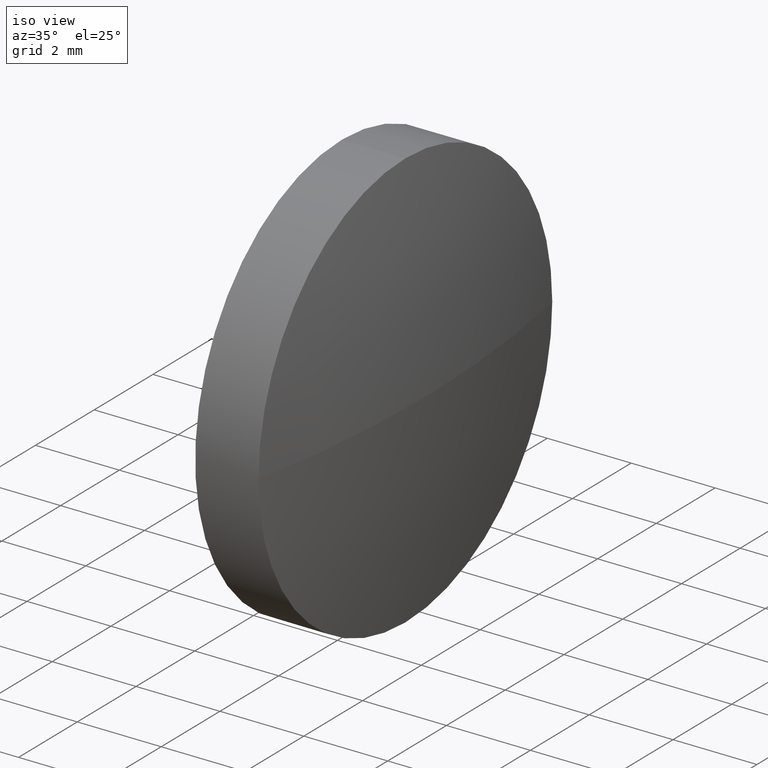
[diagram: clean part render]
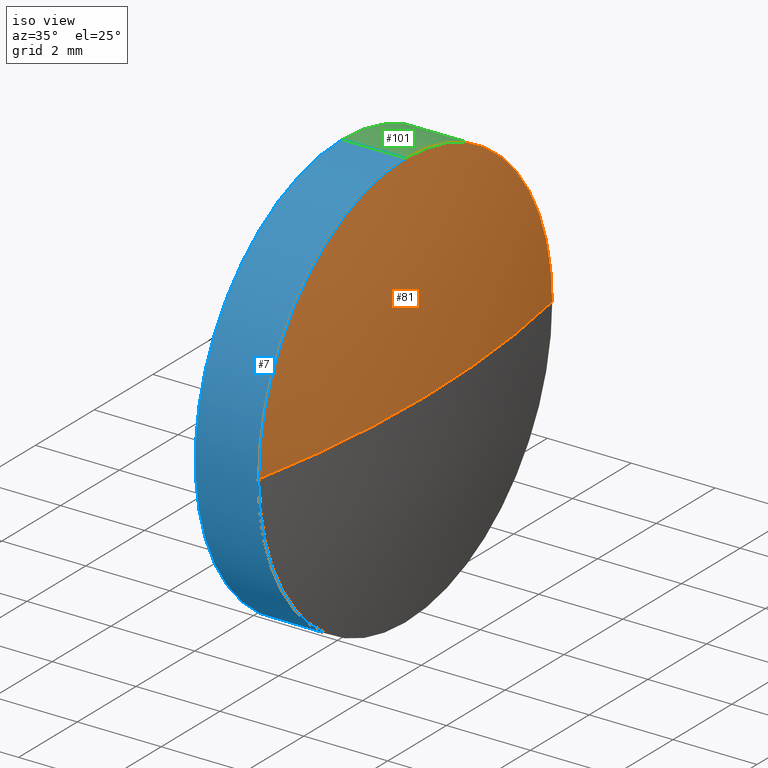
[diagram: same view with three faces highlighted in distinct colors, each labeled with its STEP entity id]
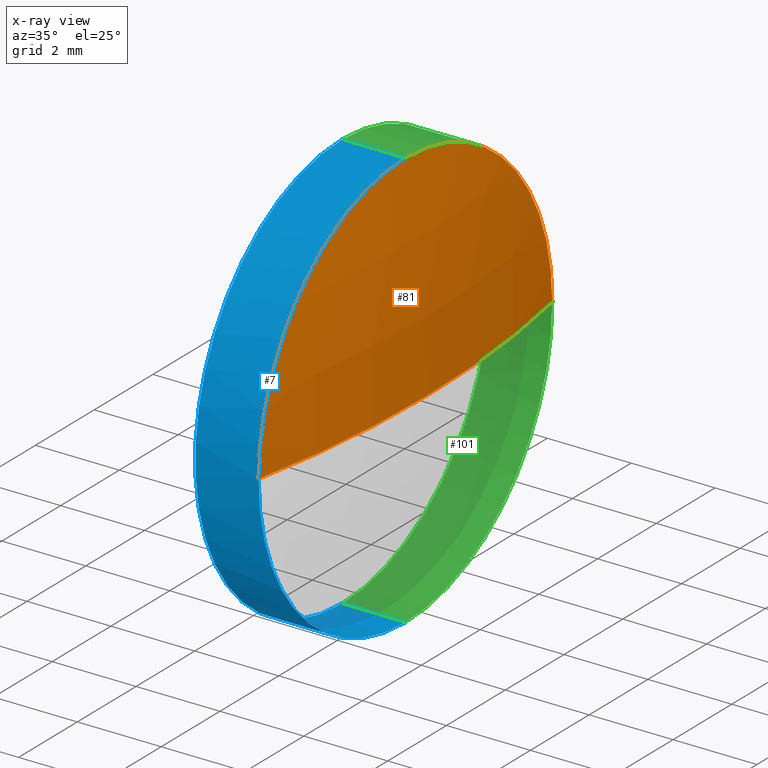
[diagram: x-ray of the same camera — body ghosted, the three highlighted faces saturated]
A machine part, iso view with three faces highlighted in distinct colors.
The next image is the same camera in x-ray (body ghosted, the three faces saturated) — at least one of them is partly hidden behind the body in this view.
Their STEP definitions:

[orange] entity #81 — the highlighted spherical surface has radius 25.7552 mm.
#1 = ORIENTED_EDGE ( 'NONE', *, *, #38, .F. ) ;
#2 = VERTEX_POINT ( 'NONE', #40 ) ;
#20 = DIRECTION ( 'NONE',  ( 0.0000000000000000000, 0.0000000000000000000, 1.000000000000000000 ) ) ;
#21 = EDGE_CURVE ( 'NONE', #2, #185, #68, .T. ) ;
#25 = CARTESIAN_POINT ( 'NONE',  ( 464.8755895717470100, 129.0640257703732300, 5.000000000000004400 ) ) ;
#31 = DIRECTION ( 'NONE',  ( 0.0000000000000000000, 1.224646799147353200E-016, -1.000000000000000000 ) ) ;
#32 = SPHERICAL_SURFACE ( 'NONE', #153, 25.75520408163263400 ) ;
#37 = EDGE_LOOP ( 'NONE', ( #123, #46, #1, #99 ) ) ;
#38 = EDGE_CURVE ( 'NONE', #162, #185, #119, .T. ) ;
#40 = CARTESIAN_POINT ( 'NONE',  ( 465.3655895717470200, 129.0640257703731500, 0.0000000000000000000 ) ) ;
#41 = DIRECTION ( 'NONE',  ( 0.0000000000000000000, 0.0000000000000000000, 1.000000000000000000 ) ) ;
#44 = DIRECTION ( 'NONE',  ( -0.0000000000000000000, 0.0000000000000000000, -1.000000000000000000 ) ) ;
#46 = ORIENTED_EDGE ( 'NONE', *, *, #21, .T. ) ;
#59 = EDGE_CURVE ( 'NONE', #2, #145, #80, .T. ) ;
#68 = CIRCLE ( 'NONE', #97, 25.75520408163262000 ) ;
#70 = EDGE_CURVE ( 'NONE', #145, #162, #92, .T. ) ;
#77 = AXIS2_PLACEMENT_3D ( 'NONE', #138, #171, #41 ) ;
#80 = CIRCLE ( 'NONE', #146, 25.75520408163264800 ) ;
#81 = ADVANCED_FACE ( 'NONE', ( #134 ), #32, .T. ) ;
#88 = CARTESIAN_POINT ( 'NONE',  ( 439.6103854901143700, 129.0640257703731500, 0.0000000000000000000 ) ) ;
#91 = CARTESIAN_POINT ( 'NONE',  ( 439.6103854901143700, 129.0640257703731500, 0.0000000000000000000 ) ) ;
#92 = CIRCLE ( 'NONE', #107, 5.000000000000004400 ) ;
#93 = CARTESIAN_POINT ( 'NONE',  ( 464.8755895717470100, 129.0640257703732300, 0.0000000000000000000 ) ) ;
#97 = AXIS2_PLACEMENT_3D ( 'NONE', #88, #121, #168 ) ;
#99 = ORIENTED_EDGE ( 'NONE', *, *, #70, .F. ) ;
#107 = AXIS2_PLACEMENT_3D ( 'NONE', #93, #128, #20 ) ;
#119 = CIRCLE ( 'NONE', #77, 5.000000000000004400 ) ;
#121 = DIRECTION ( 'NONE',  ( -0.0000000000000000000, 0.0000000000000000000, 1.000000000000000000 ) ) ;
#123 = ORIENTED_EDGE ( 'NONE', *, *, #59, .F. ) ;
#127 = CARTESIAN_POINT ( 'NONE',  ( 439.6103854901143700, 129.0640257703731500, 0.0000000000000000000 ) ) ;
#128 = DIRECTION ( 'NONE',  ( -1.000000000000000000, -0.0000000000000000000, -0.0000000000000000000 ) ) ;
#134 = FACE_OUTER_BOUND ( 'NONE', #37, .T. ) ;
#138 = CARTESIAN_POINT ( 'NONE',  ( 464.8755895717470100, 129.0640257703732300, 0.0000000000000000000 ) ) ;
#141 = DIRECTION ( 'NONE',  ( 0.0000000000000000000, 1.000000000000000000, 1.224646799147352700E-016 ) ) ;
#143 = DIRECTION ( 'NONE',  ( 0.0000000000000000000, 1.000000000000000000, 0.0000000000000000000 ) ) ;
#145 = VERTEX_POINT ( 'NONE', #181 ) ;
#146 = AXIS2_PLACEMENT_3D ( 'NONE', #91, #31, #141 ) ;
#153 = AXIS2_PLACEMENT_3D ( 'NONE', #127, #44, #143 ) ;
#162 = VERTEX_POINT ( 'NONE', #25 ) ;
#168 = DIRECTION ( 'NONE',  ( 1.000000000000000000, 0.0000000000000000000, 0.0000000000000000000 ) ) ;
#171 = DIRECTION ( 'NONE',  ( -1.000000000000000000, -0.0000000000000000000, -0.0000000000000000000 ) ) ;
#180 = CARTESIAN_POINT ( 'NONE',  ( 464.8755895717470100, 134.0640257703732100, 0.0000000000000000000 ) ) ;
#181 = CARTESIAN_POINT ( 'NONE',  ( 464.8755895717470100, 124.0640257703731800, -6.123233995736738700E-016 ) ) ;
#185 = VERTEX_POINT ( 'NONE', #180 ) ;

[blue] entity #7 — the highlighted cylindrical surface (partial cylindrical patch) has radius 5 mm, axis along (-1, -0, -0).
#7 = ADVANCED_FACE ( 'NONE', ( #164 ), #136, .T. ) ;
#13 = DIRECTION ( 'NONE',  ( -1.000000000000000000, -0.0000000000000000000, -0.0000000000000000000 ) ) ;
#19 = DIRECTION ( 'NONE',  ( -1.000000000000000000, -0.0000000000000000000, -0.0000000000000000000 ) ) ;
#20 = DIRECTION ( 'NONE',  ( 0.0000000000000000000, 0.0000000000000000000, 1.000000000000000000 ) ) ;
#25 = CARTESIAN_POINT ( 'NONE',  ( 464.8755895717470100, 129.0640257703732300, 5.000000000000004400 ) ) ;
#28 = CIRCLE ( 'NONE', #130, 5.000000000000004400 ) ;
#29 = LINE ( 'NONE', #160, #172 ) ;
#30 = ORIENTED_EDGE ( 'NONE', *, *, #142, .T. ) ;
#47 = DIRECTION ( 'NONE',  ( -1.000000000000000000, -0.0000000000000000000, -0.0000000000000000000 ) ) ;
#49 = LINE ( 'NONE', #144, #152 ) ;
#53 = VERTEX_POINT ( 'NONE', #66 ) ;
#61 = DIRECTION ( 'NONE',  ( -1.000000000000000000, -0.0000000000000000000, -0.0000000000000000000 ) ) ;
#66 = CARTESIAN_POINT ( 'NONE',  ( 463.3655895717470200, 129.0640257703732300, -5.000000000000004400 ) ) ;
#69 = CARTESIAN_POINT ( 'NONE',  ( 463.3655895717470200, 129.0640257703732300, 5.000000000000004400 ) ) ;
#70 = EDGE_CURVE ( 'NONE', #145, #162, #92, .T. ) ;
#71 = DIRECTION ( 'NONE',  ( 0.0000000000000000000, 0.0000000000000000000, 1.000000000000000000 ) ) ;
#72 = DIRECTION ( 'NONE',  ( -1.000000000000000000, -0.0000000000000000000, -0.0000000000000000000 ) ) ;
#76 = VERTEX_POINT ( 'NONE', #108 ) ;
#86 = EDGE_CURVE ( 'NONE', #76, #53, #49, .T. ) ;
#89 = DIRECTION ( 'NONE',  ( 0.0000000000000000000, 0.0000000000000000000, 1.000000000000000000 ) ) ;
#92 = CIRCLE ( 'NONE', #107, 5.000000000000004400 ) ;
#93 = CARTESIAN_POINT ( 'NONE',  ( 464.8755895717470100, 129.0640257703732300, 0.0000000000000000000 ) ) ;
#94 = EDGE_CURVE ( 'NONE', #76, #145, #28, .T. ) ;
#102 = DIRECTION ( 'NONE',  ( 0.0000000000000000000, 0.0000000000000000000, 1.000000000000000000 ) ) ;
#103 = CARTESIAN_POINT ( 'NONE',  ( 463.3655895717470200, 129.0640257703732300, 0.0000000000000000000 ) ) ;
#106 = VERTEX_POINT ( 'NONE', #69 ) ;
#107 = AXIS2_PLACEMENT_3D ( 'NONE', #93, #128, #20 ) ;
#108 = CARTESIAN_POINT ( 'NONE',  ( 464.8755895717470100, 129.0640257703732300, -5.000000000000004400 ) ) ;
#126 = ORIENTED_EDGE ( 'NONE', *, *, #94, .T. ) ;
#128 = DIRECTION ( 'NONE',  ( -1.000000000000000000, -0.0000000000000000000, -0.0000000000000000000 ) ) ;
#130 = AXIS2_PLACEMENT_3D ( 'NONE', #177, #72, #71 ) ;
#135 = AXIS2_PLACEMENT_3D ( 'NONE', #103, #61, #102 ) ;
#136 = CYLINDRICAL_SURFACE ( 'NONE', #178, 5.000000000000004400 ) ;
#140 = EDGE_LOOP ( 'NONE', ( #157, #126, #148, #30, #167 ) ) ;
#142 = EDGE_CURVE ( 'NONE', #162, #106, #29, .T. ) ;
#144 = CARTESIAN_POINT ( 'NONE',  ( 462.5679173176816300, 129.0640257703732300, -5.000000000000004400 ) ) ;
#145 = VERTEX_POINT ( 'NONE', #181 ) ;
#147 = CIRCLE ( 'NONE', #135, 5.000000000000004400 ) ;
#148 = ORIENTED_EDGE ( 'NONE', *, *, #70, .T. ) ;
#152 = VECTOR ( 'NONE', #19, 1000.000000000000000 ) ;
#154 = CARTESIAN_POINT ( 'NONE',  ( 462.5679173176816300, 129.0640257703732300, 0.0000000000000000000 ) ) ;
#157 = ORIENTED_EDGE ( 'NONE', *, *, #86, .F. ) ;
#159 = EDGE_CURVE ( 'NONE', #53, #106, #147, .T. ) ;
#160 = CARTESIAN_POINT ( 'NONE',  ( 462.5679173176816300, 129.0640257703732300, 5.000000000000004400 ) ) ;
#162 = VERTEX_POINT ( 'NONE', #25 ) ;
#164 = FACE_OUTER_BOUND ( 'NONE', #140, .T. ) ;
#167 = ORIENTED_EDGE ( 'NONE', *, *, #159, .F. ) ;
#172 = VECTOR ( 'NONE', #47, 1000.000000000000000 ) ;
#177 = CARTESIAN_POINT ( 'NONE',  ( 464.8755895717470100, 129.0640257703732300, 0.0000000000000000000 ) ) ;
#178 = AXIS2_PLACEMENT_3D ( 'NONE', #154, #13, #89 ) ;
#181 = CARTESIAN_POINT ( 'NONE',  ( 464.8755895717470100, 124.0640257703731800, -6.123233995736738700E-016 ) ) ;

[green] entity #101 — the highlighted cylindrical surface (partial cylindrical patch) has radius 5 mm, axis along (-1, -0, -0).
#11 = FACE_OUTER_BOUND ( 'NONE', #39, .T. ) ;
#12 = CYLINDRICAL_SURFACE ( 'NONE', #184, 5.000000000000004400 ) ;
#18 = ORIENTED_EDGE ( 'NONE', *, *, #113, .F. ) ;
#19 = DIRECTION ( 'NONE',  ( -1.000000000000000000, -0.0000000000000000000, -0.0000000000000000000 ) ) ;
#24 = ORIENTED_EDGE ( 'NONE', *, *, #142, .F. ) ;
#25 = CARTESIAN_POINT ( 'NONE',  ( 464.8755895717470100, 129.0640257703732300, 5.000000000000004400 ) ) ;
#26 = CARTESIAN_POINT ( 'NONE',  ( 464.8755895717470100, 129.0640257703732300, 0.0000000000000000000 ) ) ;
#29 = LINE ( 'NONE', #160, #172 ) ;
#38 = EDGE_CURVE ( 'NONE', #162, #185, #119, .T. ) ;
#39 = EDGE_LOOP ( 'NONE', ( #96, #104, #18, #24, #65 ) ) ;
#41 = DIRECTION ( 'NONE',  ( 0.0000000000000000000, 0.0000000000000000000, 1.000000000000000000 ) ) ;
#47 = DIRECTION ( 'NONE',  ( -1.000000000000000000, -0.0000000000000000000, -0.0000000000000000000 ) ) ;
#48 = DIRECTION ( 'NONE',  ( -1.000000000000000000, -0.0000000000000000000, -0.0000000000000000000 ) ) ;
#49 = LINE ( 'NONE', #144, #152 ) ;
#53 = VERTEX_POINT ( 'NONE', #66 ) ;
#55 = CARTESIAN_POINT ( 'NONE',  ( 462.5679173176816300, 129.0640257703732300, 0.0000000000000000000 ) ) ;
#63 = CIRCLE ( 'NONE', #161, 5.000000000000004400 ) ;
#65 = ORIENTED_EDGE ( 'NONE', *, *, #38, .T. ) ;
#66 = CARTESIAN_POINT ( 'NONE',  ( 463.3655895717470200, 129.0640257703732300, -5.000000000000004400 ) ) ;
#69 = CARTESIAN_POINT ( 'NONE',  ( 463.3655895717470200, 129.0640257703732300, 5.000000000000004400 ) ) ;
#74 = DIRECTION ( 'NONE',  ( 0.0000000000000000000, 0.0000000000000000000, 1.000000000000000000 ) ) ;
#76 = VERTEX_POINT ( 'NONE', #108 ) ;
#77 = AXIS2_PLACEMENT_3D ( 'NONE', #138, #171, #41 ) ;
#86 = EDGE_CURVE ( 'NONE', #76, #53, #49, .T. ) ;
#96 = ORIENTED_EDGE ( 'NONE', *, *, #176, .T. ) ;
#101 = ADVANCED_FACE ( 'NONE', ( #11 ), #12, .T. ) ;
#104 = ORIENTED_EDGE ( 'NONE', *, *, #86, .T. ) ;
#106 = VERTEX_POINT ( 'NONE', #69 ) ;
#108 = CARTESIAN_POINT ( 'NONE',  ( 464.8755895717470100, 129.0640257703732300, -5.000000000000004400 ) ) ;
#109 = DIRECTION ( 'NONE',  ( 0.0000000000000000000, 0.0000000000000000000, 1.000000000000000000 ) ) ;
#111 = DIRECTION ( 'NONE',  ( 0.0000000000000000000, 0.0000000000000000000, 1.000000000000000000 ) ) ;
#113 = EDGE_CURVE ( 'NONE', #106, #53, #115, .T. ) ;
#115 = CIRCLE ( 'NONE', #163, 5.000000000000004400 ) ;
#119 = CIRCLE ( 'NONE', #77, 5.000000000000004400 ) ;
#120 = CARTESIAN_POINT ( 'NONE',  ( 463.3655895717470200, 129.0640257703732300, 0.0000000000000000000 ) ) ;
#138 = CARTESIAN_POINT ( 'NONE',  ( 464.8755895717470100, 129.0640257703732300, 0.0000000000000000000 ) ) ;
#142 = EDGE_CURVE ( 'NONE', #162, #106, #29, .T. ) ;
#144 = CARTESIAN_POINT ( 'NONE',  ( 462.5679173176816300, 129.0640257703732300, -5.000000000000004400 ) ) ;
#152 = VECTOR ( 'NONE', #19, 1000.000000000000000 ) ;
#160 = CARTESIAN_POINT ( 'NONE',  ( 462.5679173176816300, 129.0640257703732300, 5.000000000000004400 ) ) ;
#161 = AXIS2_PLACEMENT_3D ( 'NONE', #26, #165, #74 ) ;
#162 = VERTEX_POINT ( 'NONE', #25 ) ;
#163 = AXIS2_PLACEMENT_3D ( 'NONE', #120, #169, #111 ) ;
#165 = DIRECTION ( 'NONE',  ( -1.000000000000000000, -0.0000000000000000000, -0.0000000000000000000 ) ) ;
#169 = DIRECTION ( 'NONE',  ( -1.000000000000000000, -0.0000000000000000000, -0.0000000000000000000 ) ) ;
#171 = DIRECTION ( 'NONE',  ( -1.000000000000000000, -0.0000000000000000000, -0.0000000000000000000 ) ) ;
#172 = VECTOR ( 'NONE', #47, 1000.000000000000000 ) ;
#176 = EDGE_CURVE ( 'NONE', #185, #76, #63, .T. ) ;
#180 = CARTESIAN_POINT ( 'NONE',  ( 464.8755895717470100, 134.0640257703732100, 0.0000000000000000000 ) ) ;
#184 = AXIS2_PLACEMENT_3D ( 'NONE', #55, #48, #109 ) ;
#185 = VERTEX_POINT ( 'NONE', #180 ) ;